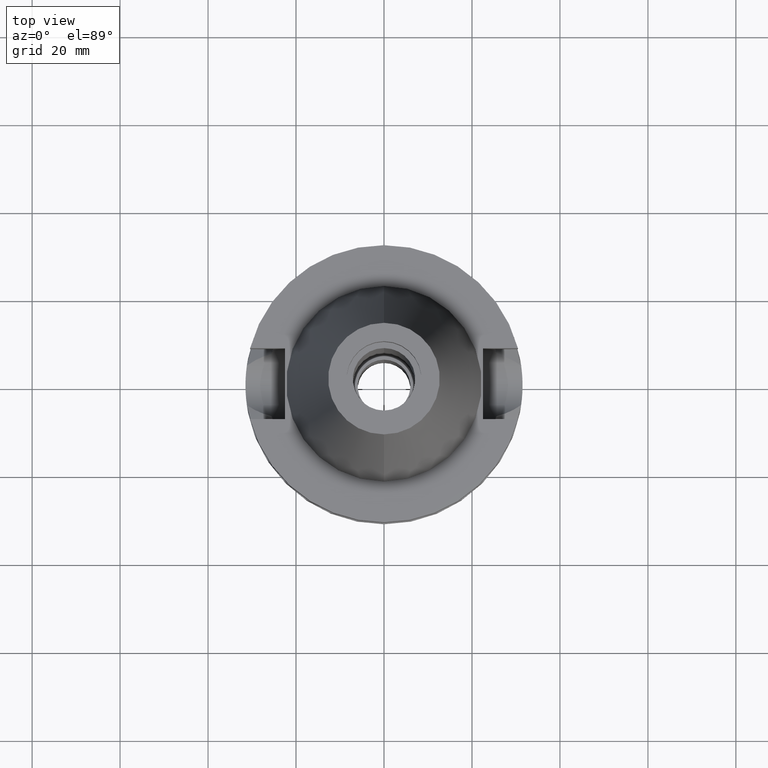
[diagram: clean part render]
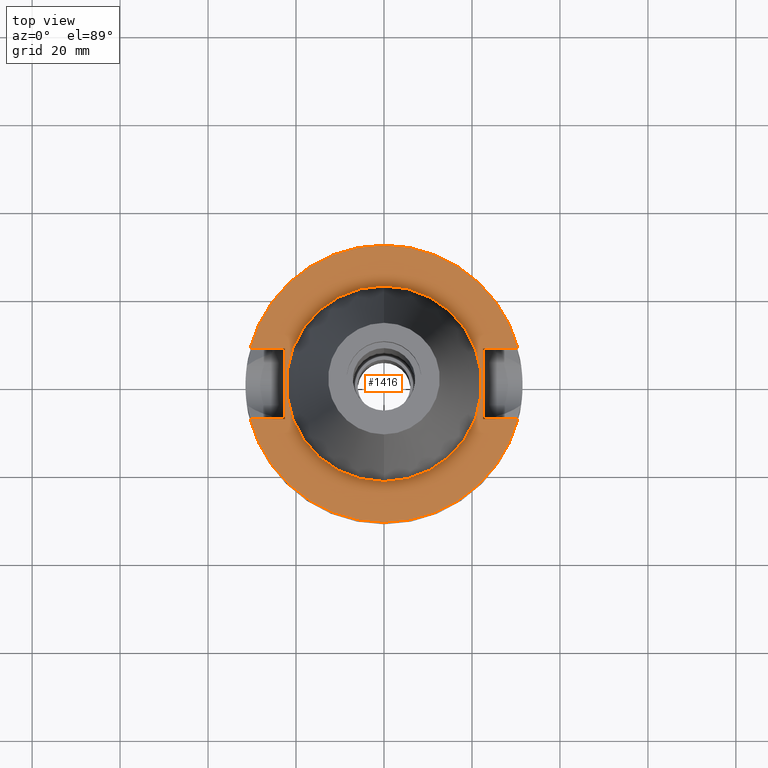
[diagram: same view with one face highlighted and labeled with its STEP entity id]
A machine part, top view. The second image highlights one B-rep face of the part: STEP entity #1416.
In plain terms, the highlighted planar face has unit normal (0, 0, -1).
Its self-contained STEP definition (entity closure, byte-faithful):
#94=DIRECTION('',(0.E0,1.E0,0.E0));
#95=VECTOR('',#94,1.61E1);
#96=CARTESIAN_POINT('',(-2.25E1,-8.05E0,-1.E0));
#97=LINE('',#96,#95);
#101=DIRECTION('',(-1.E0,-3.550916904668E-14,0.E0));
#102=VECTOR('',#101,7.954022722788E0);
#103=CARTESIAN_POINT('',(-2.25E1,8.05E0,-1.E0));
#104=LINE('',#103,#102);
#108=CARTESIAN_POINT('',(0.E0,2.111536011090E-14,-1.E0));
#109=DIRECTION('',(0.E0,0.E0,-1.E0));
#110=DIRECTION('',(-9.667943721520E-1,2.555555555556E-1,0.E0));
#111=AXIS2_PLACEMENT_3D('',#108,#109,#110);
#116=CARTESIAN_POINT('',(0.E0,2.111536011090E-14,-1.E0));
#117=DIRECTION('',(0.E0,0.E0,-1.E0));
#118=DIRECTION('',(0.E0,1.E0,0.E0));
#119=AXIS2_PLACEMENT_3D('',#116,#117,#118);
#124=DIRECTION('',(0.E0,-1.E0,0.E0));
#125=VECTOR('',#124,1.61E1);
#126=CARTESIAN_POINT('',(2.25E1,8.05E0,-1.E0));
#127=LINE('',#126,#125);
#131=DIRECTION('',(1.E0,3.573249715390E-14,0.E0));
#132=VECTOR('',#131,7.954022722788E0);
#133=CARTESIAN_POINT('',(2.25E1,-8.05E0,-1.E0));
#134=LINE('',#133,#132);
#138=CARTESIAN_POINT('',(0.E0,2.111536011090E-14,-1.E0));
#139=DIRECTION('',(0.E0,0.E0,-1.E0));
#140=DIRECTION('',(9.667943721520E-1,-2.555555555556E-1,0.E0));
#141=AXIS2_PLACEMENT_3D('',#138,#139,#140);
#146=CARTESIAN_POINT('',(0.E0,2.111536011090E-14,-1.E0));
#147=DIRECTION('',(0.E0,0.E0,-1.E0));
#148=DIRECTION('',(0.E0,-1.E0,0.E0));
#149=AXIS2_PLACEMENT_3D('',#146,#147,#148);
#154=CARTESIAN_POINT('',(0.E0,2.111536011090E-14,-1.E0));
#155=DIRECTION('',(0.E0,0.E0,1.E0));
#156=DIRECTION('',(0.E0,-1.E0,0.E0));
#157=AXIS2_PLACEMENT_3D('',#154,#155,#156);
#162=CARTESIAN_POINT('',(0.E0,2.111536011090E-14,-1.E0));
#163=DIRECTION('',(0.E0,0.E0,1.E0));
#164=DIRECTION('',(0.E0,1.E0,0.E0));
#165=AXIS2_PLACEMENT_3D('',#162,#163,#164);
#200=DIRECTION('',(-1.E0,3.550916904668E-14,0.E0));
#201=VECTOR('',#200,7.954022722788E0);
#202=CARTESIAN_POINT('',(-2.25E1,-8.05E0,-1.E0));
#203=LINE('',#202,#201);
#337=DIRECTION('',(1.E0,-3.506251283226E-14,0.E0));
#338=VECTOR('',#337,7.954022722788E0);
#339=CARTESIAN_POINT('',(2.25E1,8.05E0,-1.E0));
#340=LINE('',#339,#338);
#1273=CARTESIAN_POINT('',(-2.25E1,-8.05E0,-1.E0));
#1274=VERTEX_POINT('',#1273);
#1275=CARTESIAN_POINT('',(-3.045402272279E1,-8.05E0,-1.E0));
#1276=VERTEX_POINT('',#1275);
#1279=CARTESIAN_POINT('',(-2.25E1,8.05E0,-1.E0));
#1280=VERTEX_POINT('',#1279);
#1281=CARTESIAN_POINT('',(-3.045402272279E1,8.05E0,-1.E0));
#1282=VERTEX_POINT('',#1281);
#1283=CARTESIAN_POINT('',(-3.317447654708E-14,3.15E1,-1.E0));
#1284=CARTESIAN_POINT('',(3.045402272279E1,8.05E0,-1.E0));
#1285=VERTEX_POINT('',#1283);
#1286=VERTEX_POINT('',#1284);
#1287=CARTESIAN_POINT('',(2.25E1,8.05E0,-1.E0));
#1288=VERTEX_POINT('',#1287);
#1289=CARTESIAN_POINT('',(2.25E1,-8.05E0,-1.E0));
#1290=VERTEX_POINT('',#1289);
#1291=CARTESIAN_POINT('',(3.045402272279E1,-8.05E0,-1.E0));
#1292=VERTEX_POINT('',#1291);
#1293=CARTESIAN_POINT('',(3.317447654708E-14,-3.15E1,-1.E0));
#1294=VERTEX_POINT('',#1293);
#1295=CARTESIAN_POINT('',(0.E0,-2.2225E1,-1.E0));
#1296=CARTESIAN_POINT('',(0.E0,2.2225E1,-1.E0));
#1297=VERTEX_POINT('',#1295);
#1298=VERTEX_POINT('',#1296);
#1385=CARTESIAN_POINT('',(0.E0,1.212400331156E-14,-1.E0));
#1386=DIRECTION('',(0.E0,0.E0,-1.E0));
#1387=DIRECTION('',(0.E0,-1.E0,0.E0));
#1388=AXIS2_PLACEMENT_3D('',#1385,#1386,#1387);
#1389=PLANE('',#1388);
#1391=ORIENTED_EDGE('',*,*,#1390,.T.);
#1393=ORIENTED_EDGE('',*,*,#1392,.T.);
#1395=ORIENTED_EDGE('',*,*,#1394,.T.);
#1397=ORIENTED_EDGE('',*,*,#1396,.T.);
#1399=ORIENTED_EDGE('',*,*,#1398,.F.);
#1401=ORIENTED_EDGE('',*,*,#1400,.T.);
#1403=ORIENTED_EDGE('',*,*,#1402,.T.);
#1405=ORIENTED_EDGE('',*,*,#1404,.T.);
#1407=ORIENTED_EDGE('',*,*,#1406,.T.);
#1409=ORIENTED_EDGE('',*,*,#1408,.F.);
#1410=EDGE_LOOP('',(#1391,#1393,#1395,#1397,#1399,#1401,#1403,#1405,#1407,
#1409));
#1411=FACE_OUTER_BOUND('',#1410,.F.);
#1412=ORIENTED_EDGE('',*,*,#1364,.T.);
#1413=ORIENTED_EDGE('',*,*,#1380,.T.);
#1414=EDGE_LOOP('',(#1412,#1413));
#1415=FACE_BOUND('',#1414,.F.);
#112=CIRCLE('',#111,3.15E1);
#120=CIRCLE('',#119,3.15E1);
#142=CIRCLE('',#141,3.15E1);
#150=CIRCLE('',#149,3.15E1);
#158=CIRCLE('',#157,2.2225E1);
#166=CIRCLE('',#165,2.2225E1);
#1364=EDGE_CURVE('',#1297,#1298,#158,.T.);
#1380=EDGE_CURVE('',#1298,#1297,#166,.T.);
#1390=EDGE_CURVE('',#1274,#1280,#97,.T.);
#1392=EDGE_CURVE('',#1280,#1282,#104,.T.);
#1394=EDGE_CURVE('',#1282,#1285,#112,.T.);
#1396=EDGE_CURVE('',#1285,#1286,#120,.T.);
#1398=EDGE_CURVE('',#1288,#1286,#340,.T.);
#1400=EDGE_CURVE('',#1288,#1290,#127,.T.);
#1402=EDGE_CURVE('',#1290,#1292,#134,.T.);
#1404=EDGE_CURVE('',#1292,#1294,#142,.T.);
#1406=EDGE_CURVE('',#1294,#1276,#150,.T.);
#1408=EDGE_CURVE('',#1274,#1276,#203,.T.);
#1416=ADVANCED_FACE('',(#1411,#1415),#1389,.F.);